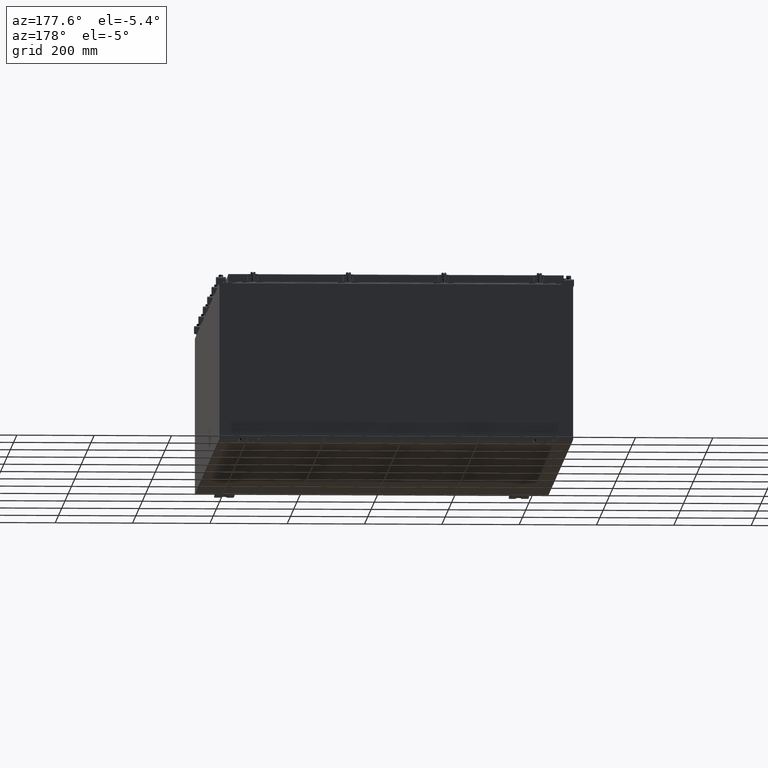
[diagram: clean part render]
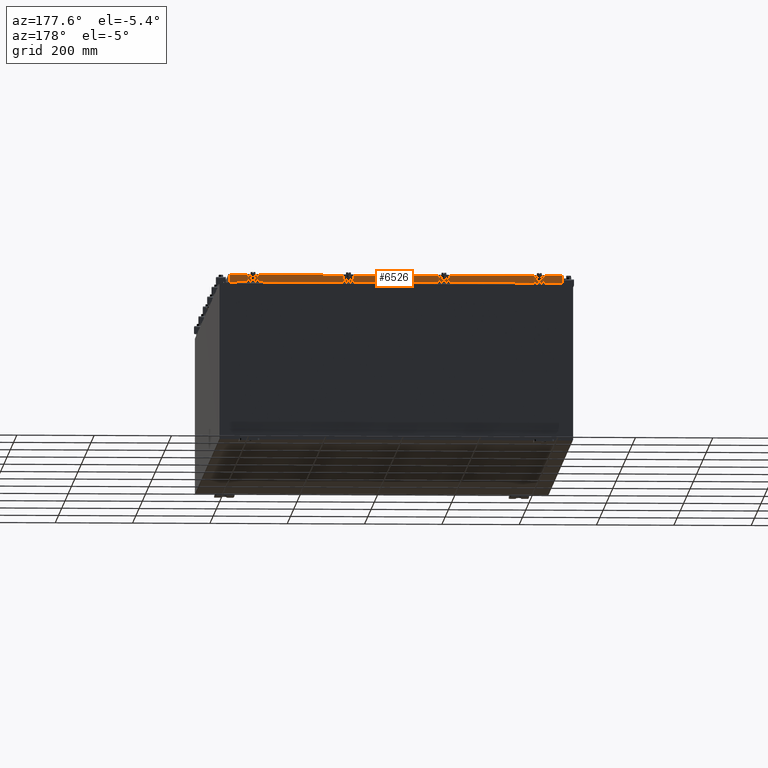
[diagram: same view with one face highlighted and labeled with its STEP entity id]
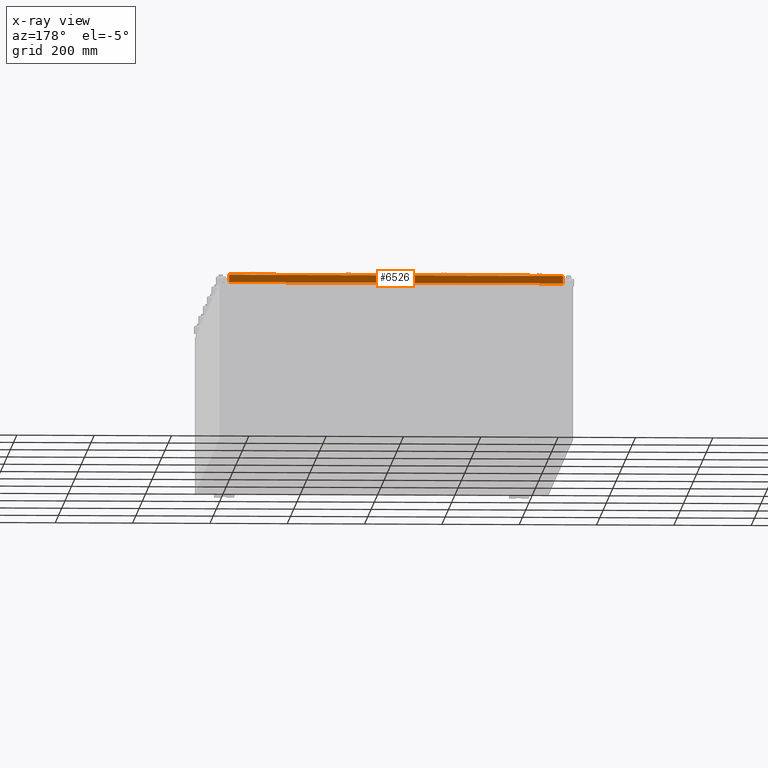
[diagram: x-ray of the same camera — body ghosted, the highlighted face saturated]
A machine part, auxiliary view. The second image highlights one B-rep face of the part: STEP entity #6526.
The next image is the same camera in x-ray: the body ghosted, the highlighted face saturated — about 0% of this face is hidden behind the body in this view.
In plain terms, the highlighted planar face has unit normal (0, -1, -0).
Its self-contained STEP definition (entity closure, byte-faithful):
#338 = CARTESIAN_POINT ( 'NONE',  ( -16.98915786437626400, 29.09400000000000100, -0.08769999999999549000 ) ) ;
#349 = CARTESIAN_POINT ( 'NONE',  ( -16.98915786437626400, 29.09400000000000500, -0.8500000000000038600 ) ) ;
#983 = VECTOR ( 'NONE', #23121, 39.37007874015748100 ) ;
#1664 = CARTESIAN_POINT ( 'NONE',  ( 16.98915786437627100, 29.09400000000000100, 1.642858579540487400E-013 ) ) ;
#2769 = VERTEX_POINT ( 'NONE', #18355 ) ;
#3995 = AXIS2_PLACEMENT_3D ( 'NONE', #4008, #10469, #25301 ) ;
#4008 = CARTESIAN_POINT ( 'NONE',  ( -2.033440117909712900E-029, 29.09400000000000100, 1.642858579540487400E-013 ) ) ;
#5011 = EDGE_LOOP ( 'NONE', ( #14258, #15139, #22116, #5031, #5161, #21876 ) ) ;
#5031 = ORIENTED_EDGE ( 'NONE', *, *, #7043, .F. ) ;
#5161 = ORIENTED_EDGE ( 'NONE', *, *, #8864, .F. ) ;
#6019 = VECTOR ( 'NONE', #12403, 39.37007874015748100 ) ;
#6342 = CARTESIAN_POINT ( 'NONE',  ( -16.98915786437626400, 29.09400000000000100, -0.07469999999999958600 ) ) ;
#6526 = ADVANCED_FACE ( 'NONE', ( #14246 ), #14637, .F. ) ;
#6718 = LINE ( 'NONE', #1664, #6019 ) ;
#6823 = CARTESIAN_POINT ( 'NONE',  ( -17.07799999999999600, 29.09400000000000500, -0.8500000000000038600 ) ) ;
#6857 = EDGE_CURVE ( 'NONE', #7378, #8069, #25864, .T. ) ;
#7043 = EDGE_CURVE ( 'NONE', #2769, #7378, #22515, .T. ) ;
#7378 = VERTEX_POINT ( 'NONE', #12656 ) ;
#8069 = VERTEX_POINT ( 'NONE', #13006 ) ;
#8498 = DIRECTION ( 'NONE',  ( -0.0000000000000000000, 5.637761885544689500E-015, -1.000000000000000000 ) ) ;
#8647 = EDGE_CURVE ( 'NONE', #13105, #8069, #6718, .T. ) ;
#8864 = EDGE_CURVE ( 'NONE', #17990, #2769, #13375, .T. ) ;
#8875 = CARTESIAN_POINT ( 'NONE',  ( -17.07799999999999600, 29.09400000000000500, -0.8500000000000038600 ) ) ;
#8968 = DIRECTION ( 'NONE',  ( 1.000000000000000000, -0.0000000000000000000, 1.239713195391617400E-016 ) ) ;
#9874 = EDGE_CURVE ( 'NONE', #21471, #17990, #20669, .T. ) ;
#10040 = VECTOR ( 'NONE', #8498, 39.37007874015748100 ) ;
#10469 = DIRECTION ( 'NONE',  ( 6.989207801985676400E-031, -1.000000000000000000, -5.637761885544689500E-015 ) ) ;
#11012 = DIRECTION ( 'NONE',  ( 1.000000000000000000, -0.0000000000000000000, 1.239713195391617400E-016 ) ) ;
#12403 = DIRECTION ( 'NONE',  ( 0.0000000000000000000, 5.637761885544689500E-015, -1.000000000000000000 ) ) ;
#12656 = CARTESIAN_POINT ( 'NONE',  ( 16.23915786437627100, 29.09400000000000100, -0.8500000000000037500 ) ) ;
#13006 = CARTESIAN_POINT ( 'NONE',  ( 16.98915786437627100, 29.09400000000000500, -0.8499999999999996400 ) ) ;
#13105 = VERTEX_POINT ( 'NONE', #25650 ) ;
#13375 = LINE ( 'NONE', #6823, #24645 ) ;
#13601 = DIRECTION ( 'NONE',  ( 1.000000000000000000, -0.0000000000000000000, -0.0000000000000000000 ) ) ;
#14246 = FACE_OUTER_BOUND ( 'NONE', #5011, .T. ) ;
#14258 = ORIENTED_EDGE ( 'NONE', *, *, #14972, .F. ) ;
#14637 = PLANE ( 'NONE',  #3995 ) ;
#14874 = VECTOR ( 'NONE', #13601, 39.37007874015748100 ) ;
#14972 = EDGE_CURVE ( 'NONE', #13105, #21471, #17973, .T. ) ;
#15139 = ORIENTED_EDGE ( 'NONE', *, *, #8647, .T. ) ;
#17973 = LINE ( 'NONE', #21011, #983 ) ;
#17990 = VERTEX_POINT ( 'NONE', #349 ) ;
#18355 = CARTESIAN_POINT ( 'NONE',  ( -16.23915786437625600, 29.09400000000000100, -0.8500000000000037500 ) ) ;
#20669 = LINE ( 'NONE', #6342, #10040 ) ;
#21011 = CARTESIAN_POINT ( 'NONE',  ( -17.07799999999999600, 29.09400000000000100, -0.08769999999999547600 ) ) ;
#21471 = VERTEX_POINT ( 'NONE', #338 ) ;
#21876 = ORIENTED_EDGE ( 'NONE', *, *, #9874, .F. ) ;
#22116 = ORIENTED_EDGE ( 'NONE', *, *, #6857, .F. ) ;
#22133 = CARTESIAN_POINT ( 'NONE',  ( -16.23915786437626400, 29.09400000000000100, -0.8500000000000037500 ) ) ;
#22515 = LINE ( 'NONE', #22133, #14874 ) ;
#23121 = DIRECTION ( 'NONE',  ( -1.000000000000000000, -6.989207801985677300E-031, -3.922586267643528000E-045 ) ) ;
#23851 = VECTOR ( 'NONE', #11012, 39.37007874015748100 ) ;
#24645 = VECTOR ( 'NONE', #8968, 39.37007874015748100 ) ;
#25301 = DIRECTION ( 'NONE',  ( 0.0000000000000000000, 5.637761885544689500E-015, -1.000000000000000000 ) ) ;
#25650 = CARTESIAN_POINT ( 'NONE',  ( 16.98915786437627100, 29.09400000000000100, -0.08769999999999547600 ) ) ;
#25864 = LINE ( 'NONE', #8875, #23851 ) ;